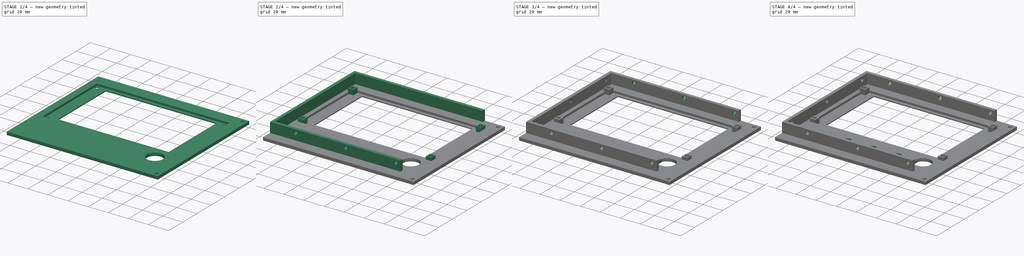
[diagram: build sequence overview — one tinted view per stage of 4, left to right]
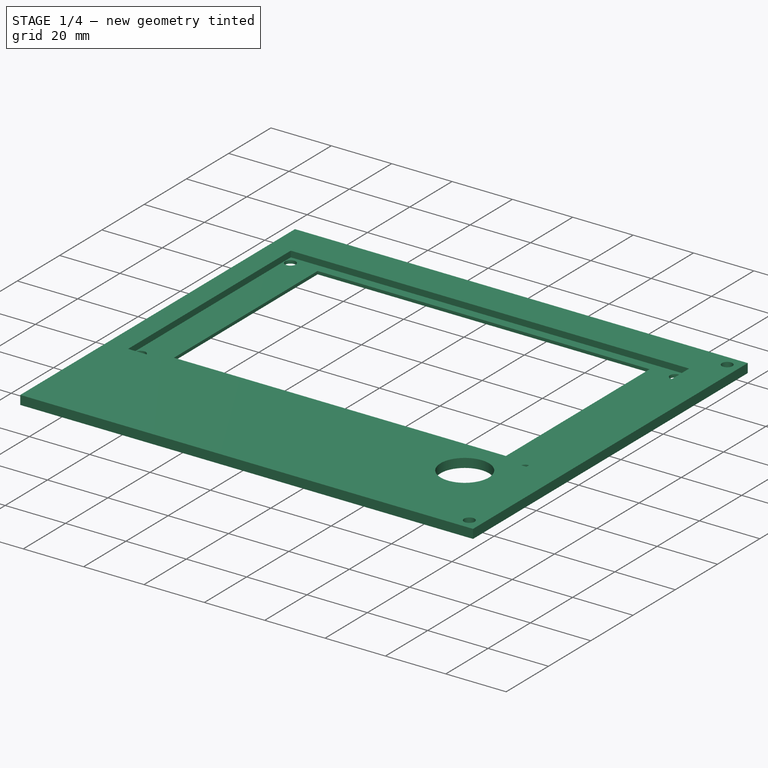
[diagram: stage 1 of 4 — iso view after this stage's code; geometry added in this stage tinted green]
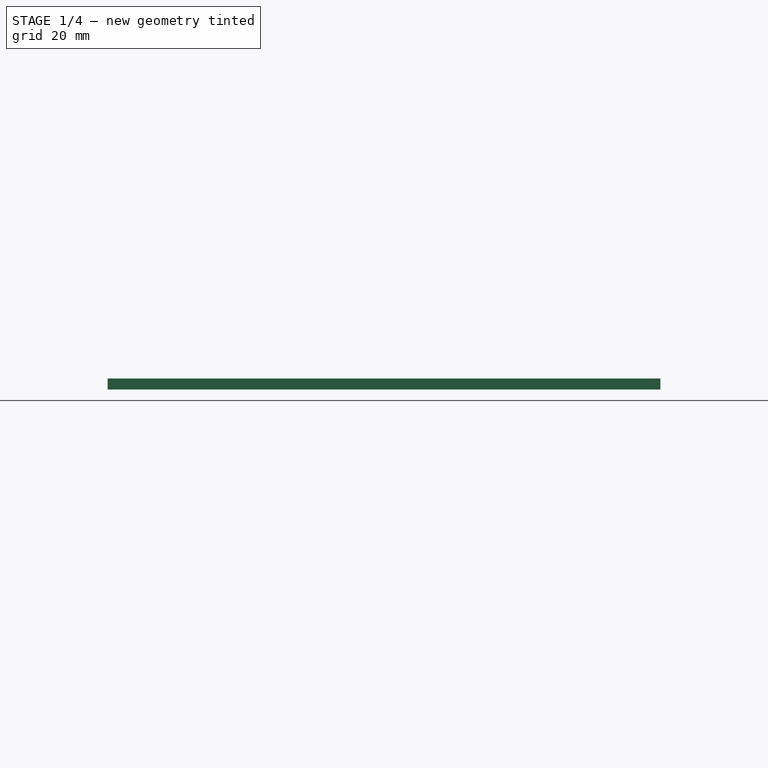
[diagram: stage 1 of 4 — front view after this stage's code; geometry added in this stage tinted green]
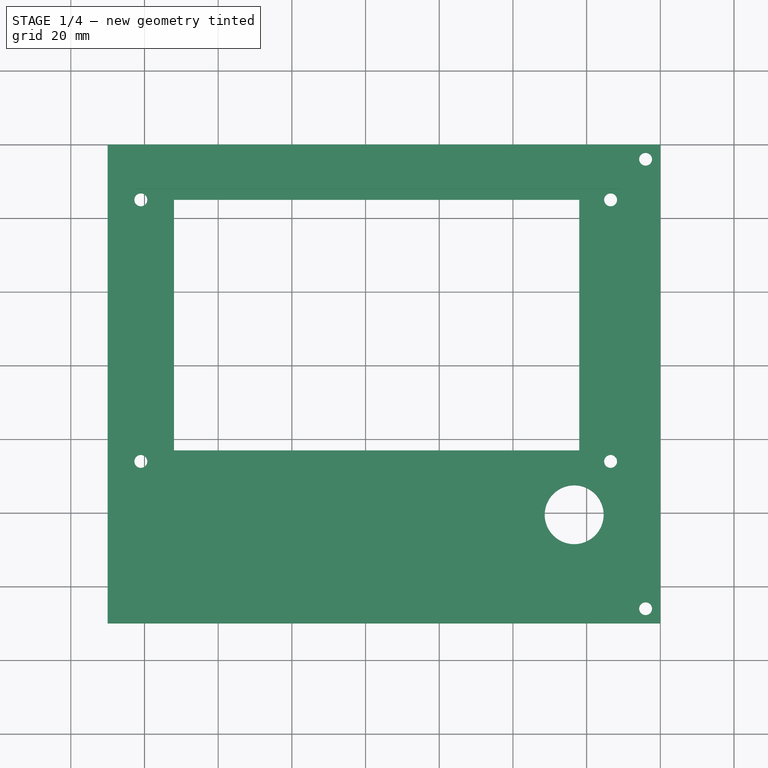
[diagram: stage 1 of 4 — top view after this stage's code; geometry added in this stage tinted green]
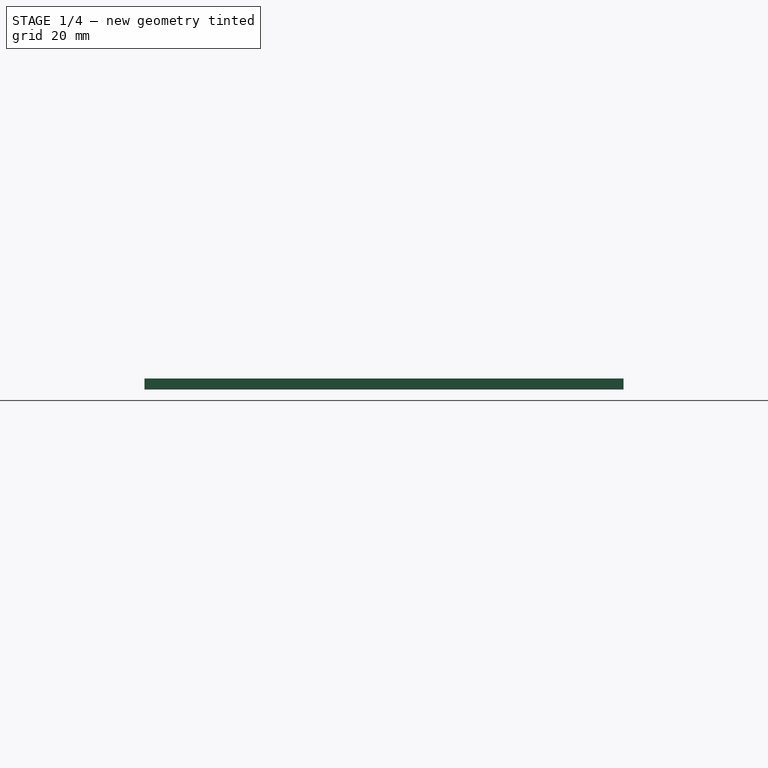
[diagram: stage 1 of 4 — right view after this stage's code; geometry added in this stage tinted green]
FCSTD DOCUMENT  (FreeCAD 0.21R33668 +26 (Git))
Label: Front_left_panel_KF5N v01
License: All rights reserved
LicenseURL: http://en.wikipedia.org/wiki/All_rights_reserved
objects: Sketcher::SketchObject×10, PartDesign::Pad×5, PartDesign::Pocket×5, PartDesign::Plane×2, PartDesign::Body×1
note: 33 computed .brp shape members not serialized (recipe doc carries the construction recipe); baked Part::Feature solids carry a one-line shape summary decoded from their .brp

FEATURE [Sketcher::SketchObject] Sketch  label="Main Front"
  FullyConstrained = false
  MapMode = 5
  Support = -> [XY_Plane]
  sketch-geometry (18):
    g0: LineSegment StartX=-150 StartY=60 StartZ=0 EndX=0 EndY=60 EndZ=0
    g1: LineSegment StartX=0 StartY=60 StartZ=0 EndX=0 EndY=-70 EndZ=0
    g2: LineSegment StartX=0 StartY=-70 StartZ=0 EndX=-150 EndY=-70 EndZ=0
    g3: LineSegment StartX=-150 StartY=-70 StartZ=0 EndX=-150 EndY=60 EndZ=0
    g4: LineSegment StartX=-132 StartY=45 StartZ=0 EndX=-22 EndY=45 EndZ=0
    g5: LineSegment StartX=-22 StartY=45 StartZ=0 EndX=-22 EndY=-23 EndZ=0
    g6: LineSegment StartX=-22 StartY=-23 StartZ=0 EndX=-132 EndY=-23 EndZ=0
    g7: LineSegment StartX=-132 StartY=-23 StartZ=0 EndX=-132 EndY=45 EndZ=0
    g8: LineSegment StartX=-101.72 StartY=-40.5 StartZ=0 EndX=-76.7201 EndY=-40.5 EndZ=0
    g9: LineSegment StartX=-76.9795 StartY=-40.5 StartZ=0 EndX=-51.9795 EndY=-40.5 EndZ=0
    g10: Circle CenterX=-23.3865 CenterY=-40.5 CenterZ=0 NormalX=0 NormalY=0 NormalZ=1 AngleXU=0 Radius=8
    g11: LineSegment StartX=-48.3865 StartY=-40.5 StartZ=0 EndX=-23.3865 EndY=-40.5 EndZ=0
    g12: Circle CenterX=-141 CenterY=45 CenterZ=0 NormalX=0 NormalY=0 NormalZ=1 AngleXU=0 Radius=1.75
    g13: Circle CenterX=-141 CenterY=-26 CenterZ=0 NormalX=0 NormalY=0 NormalZ=1 AngleXU=0 Radius=1.75
    g14: Circle CenterX=-13.5 CenterY=45 CenterZ=0 NormalX=0 NormalY=0 NormalZ=1 AngleXU=0 Radius=1.75
    g15: Circle CenterX=-13.5 CenterY=-26 CenterZ=0 NormalX=0 NormalY=0 NormalZ=1 AngleXU=0 Radius=1.75
    g16: Circle CenterX=-4 CenterY=56 CenterZ=0 NormalX=0 NormalY=0 NormalZ=1 AngleXU=0 Radius=1.75
    g17: Circle CenterX=-4 CenterY=-66 CenterZ=0 NormalX=0 NormalY=0 NormalZ=1 AngleXU=0 Radius=1.75
  constraints (50):
    c: Coincident(g0,g1)
    c: Coincident(g1,g2)
    c: Coincident(g2,g3)
    c: Coincident(g3,g0)
    c: Horizontal(g2)
    c: Vertical(g1)
    c: DistanceY(g3,g3) = 130
    c: Coincident(g4,g5)
    c: Coincident(g5,g6)
    c: Coincident(g6,g7)
    c: Coincident(g7,g4)
    c: Horizontal(g4)
    c: Horizontal(g6)
    c: Vertical(g5)
    c: Vertical(g7)
    c: DistanceX(g4,g4) = 110
    c: DistanceY(g7,g7) = 68
    c: DistanceX(g0,g4) = 18
    c: DistanceY(g4,g0) = 15
    c: Distance(g8) = 25
    c: Angle(g8) = 0
    c: Equal(g8,g9)
    c: Parallel(g9,g8)
    c: Coincident(g10,g11)
    c: Equal(g8,g11)
    c: Parallel(g11,g8)
    c: DistanceX(g12,g4) = 9
    c: Vertical(g12,g13)
    c: DistanceX(g4,g14) = 8.5
    c: Horizontal(g12,g14)
    c: Vertical(g15,g14)
    c: Horizontal(g15,g13)
    c: DistanceY(g16,g0) = 4
    c: DistanceY(g2,g17) = 4
    c: DistanceX(g0,g0) = 150
    c: DistanceX(g-1,g1) = 0
    c: DistanceX(g2,g2) = 150
    c: Perpendicular(g0,g1)
    c: DistanceY(g-1,g0) = 60
    c: DistanceY(g12,g4) = 0
    c: DistanceY(g13,g6) = 3
    c: DistanceX(g16,g0) = 4
    c: DistanceX(g17,g1) = 4
    c: Diameter(g17) = 3.5
    c: Diameter(g16) = 3.5
    c: Diameter(g12) = 3.5
    c: Equal(g12,g14)
    c: Equal(g14,g15)
    c: Equal(g15,g13)
    c: Diameter(g10) = 16
FEATURE [Sketcher::SketchObject] Sketch002  label="Screen pocket"
  AttachmentOffset = pos=(0,0,3.5) rot=(0,0,1;0rad)
  FullyConstrained = true
  MapMode = 5
  Placement = pos=(0,0,3.5) rot=(0,0,1;0rad)
  Support = -> [XY_Plane]
  sketch-geometry (4):
    g0: LineSegment StartX=-143 StartY=48 StartZ=0 EndX=-11 EndY=48 EndZ=0
    g1: LineSegment StartX=-11 StartY=48 StartZ=0 EndX=-11 EndY=-29 EndZ=0
    g2: LineSegment StartX=-11 StartY=-29 StartZ=0 EndX=-143 EndY=-29 EndZ=0
    g3: LineSegment StartX=-143 StartY=-29 StartZ=0 EndX=-143 EndY=48 EndZ=0
  constraints (12):
    c: Coincident(g0,g1)
    c: Coincident(g1,g2)
    c: Coincident(g2,g3)
    c: Coincident(g3,g0)
    c: Horizontal(g0)
    c: Horizontal(g2)
    c: Vertical(g1)
    c: Vertical(g3)
    c: DistanceX(g2,g2) = 132
    c: DistanceY(g3,g3) = 77
    c: DistanceX(g1,g-1) = 11
    c: DistanceY(g1,g-1) = 29
FEATURE [PartDesign::Pad] Pad
  Direction = (0,0,1)
  Length = 3
  Length2 = 100
  Profile = -> Sketch
  ReferenceAxis = -> Sketch [N_Axis]
  Type = 0
FEATURE [PartDesign::Pocket] Pocket001  label="Screen Pocket"
  BaseFeature = -> Pad
  Direction = (0,0,-1)
  Length = 2.5
  Length2 = 100
  Profile = -> Sketch002
  Type = 0
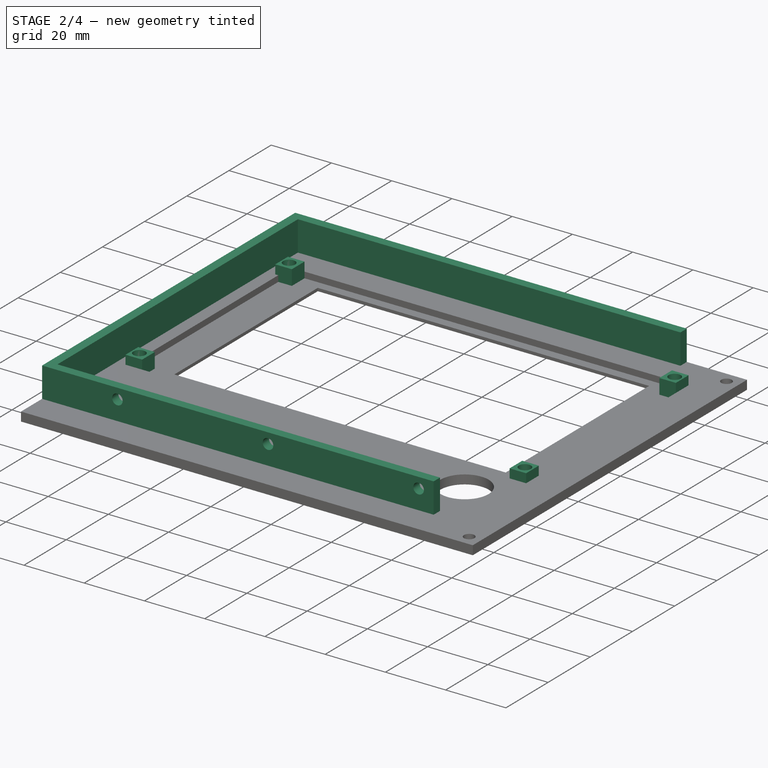
[diagram: stage 2 of 4 — iso view after this stage's code; geometry added in this stage tinted green]
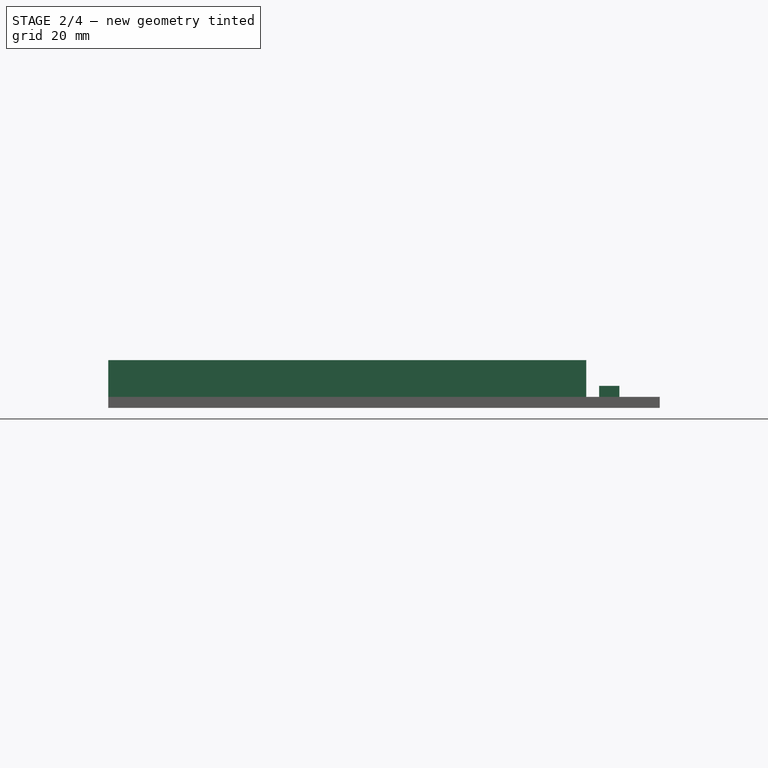
[diagram: stage 2 of 4 — front view after this stage's code; geometry added in this stage tinted green]
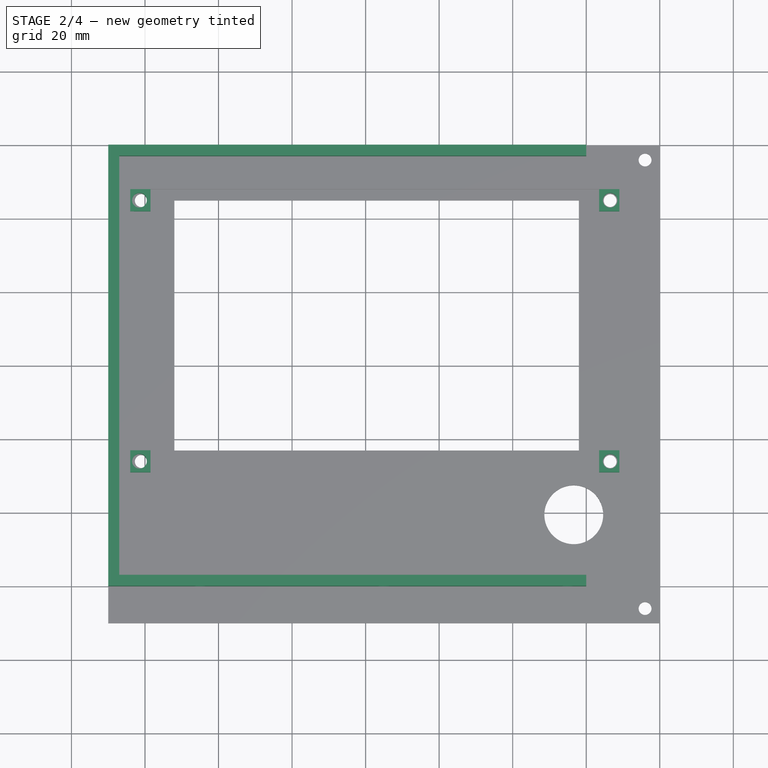
[diagram: stage 2 of 4 — top view after this stage's code; geometry added in this stage tinted green]
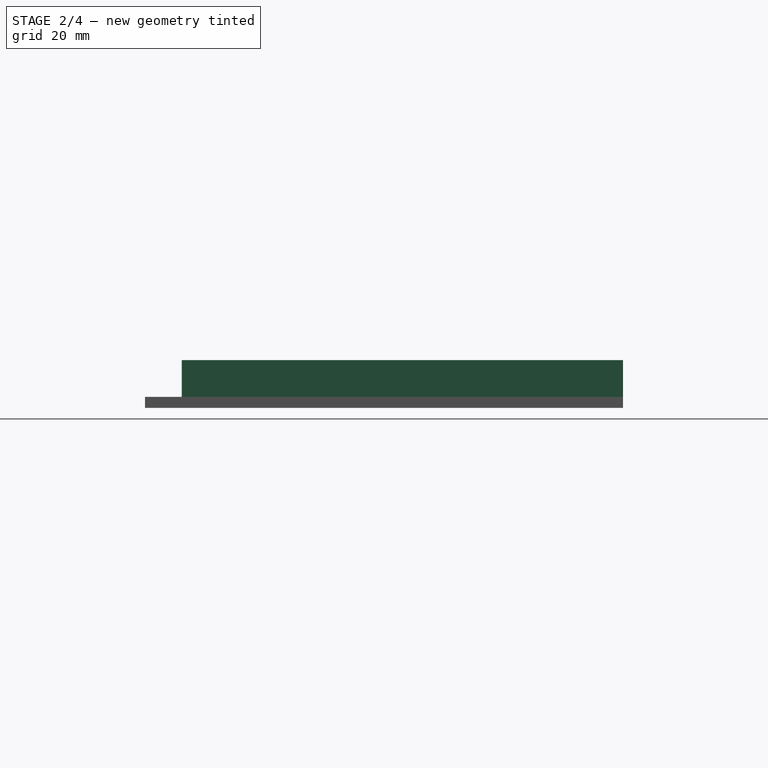
[diagram: stage 2 of 4 — right view after this stage's code; geometry added in this stage tinted green]
FEATURE [Sketcher::SketchObject] Sketch007
  FullyConstrained = true
  MapMode = 5
  Support = -> [XY_Plane]
  sketch-geometry (20):
    g0: Circle CenterX=-141.5 CenterY=45 CenterZ=0 NormalX=0 NormalY=0 NormalZ=1 AngleXU=0 Radius=2
    g1: Circle CenterX=-13.5 CenterY=45 CenterZ=0 NormalX=0 NormalY=0 NormalZ=1 AngleXU=0 Radius=2
    g2: LineSegment StartX=-144 StartY=48 StartZ=0 EndX=-138.5 EndY=48 EndZ=0
    g3: LineSegment StartX=-138.5 StartY=48 StartZ=0 EndX=-138.5 EndY=42 EndZ=0
    g4: LineSegment StartX=-138.5 StartY=42 StartZ=0 EndX=-144 EndY=42 EndZ=0
    g5: LineSegment StartX=-144 StartY=42 StartZ=0 EndX=-144 EndY=48 EndZ=0
    g6: LineSegment StartX=-16.5 StartY=42 StartZ=0 EndX=-11 EndY=42 EndZ=0
    g7: LineSegment StartX=-11 StartY=42 StartZ=0 EndX=-11 EndY=48 EndZ=0
    g8: LineSegment StartX=-11 StartY=48 StartZ=0 EndX=-16.5 EndY=48 EndZ=0
    g9: LineSegment StartX=-16.5 StartY=48 StartZ=0 EndX=-16.5 EndY=42 EndZ=0
    g10: LineSegment StartX=-16.5 StartY=-23 StartZ=0 EndX=-11 EndY=-23 EndZ=0
    g11: LineSegment StartX=-11 StartY=-23 StartZ=0 EndX=-11 EndY=-29 EndZ=0
    g12: LineSegment StartX=-11 StartY=-29 StartZ=0 EndX=-16.5 EndY=-29 EndZ=0
    g13: LineSegment StartX=-16.5 StartY=-29 StartZ=0 EndX=-16.5 EndY=-23 EndZ=0
    g14: Circle CenterX=-13.5 CenterY=-26 CenterZ=0 NormalX=0 NormalY=0 NormalZ=1 AngleXU=0 Radius=2
    g15: LineSegment StartX=-138.5 StartY=-23 StartZ=0 EndX=-144 EndY=-23 EndZ=0
    g16: LineSegment StartX=-144 StartY=-23 StartZ=0 EndX=-144 EndY=-29 EndZ=0
    g17: LineSegment StartX=-144 StartY=-29 StartZ=0 EndX=-138.5 EndY=-29 EndZ=0
    g18: LineSegment StartX=-138.5 StartY=-29 StartZ=0 EndX=-138.5 EndY=-23 EndZ=0
    g19: Circle CenterX=-141.5 CenterY=-26 CenterZ=0 NormalX=0 NormalY=0 NormalZ=1 AngleXU=0 Radius=2
  constraints (60):
    c: Diameter(g0) = 4
    c: Diameter(g1) = 4
    c: Coincident(g2,g3)
    c: Coincident(g3,g4)
    c: Coincident(g4,g5)
    c: Coincident(g5,g2)
    c: Horizontal(g2)
    c: Horizontal(g4)
    c: Vertical(g3)
    c: Vertical(g5)
    c: DistanceY(g3,g3) = 6
    c: DistanceX(g4,g4) = 5.5
    c: DistanceY(g-1,g3) = 42
    c: DistanceX(g3,g-1) = 138.5
    c: DistanceX(g0,g3) = 3
    c: DistanceY(g3,g0) = 3
    c: Coincident(g6,g7)
    c: Coincident(g7,g8)
    c: Coincident(g8,g9)
    c: Coincident(g9,g6)
    c: Horizontal(g6)
    c: Horizontal(g8)
    c: Vertical(g7)
    c: Vertical(g9)
    c: DistanceX(g6,g6) = 5.5
    c: DistanceY(g9,g9) = 6
    c: DistanceY(g-1,g6) = 42
    c: DistanceX(g6,g-1) = 16.5
    c: DistanceX(g6,g1) = 3
    c: DistanceY(g6,g1) = 3
    c: Coincident(g10,g11)
    c: Coincident(g11,g12)
    c: Coincident(g12,g13)
    c: Coincident(g13,g10)
    c: Horizontal(g10)
    c: Horizontal(g12)
    c: Vertical(g11)
    c: Vertical(g13)
    c: DistanceX(g10,g10) = 5.5
    c: DistanceY(g13,g13) = 6
    c: DistanceX(g10,g-1) = 16.5
    c: DistanceY(g10,g-1) = 23
    c: Diameter(g14) = 4
    c: DistanceX(g10,g14) = 3
    c: DistanceY(g14,g10) = 3
    c: Coincident(g15,g16)
    c: Coincident(g16,g17)
    c: Coincident(g17,g18)
    c: Coincident(g18,g15)
    c: Horizontal(g15)
    c: Horizontal(g17)
    c: Vertical(g16)
    c: Vertical(g18)
    c: DistanceX(g15,g15) = 5.5
    c: DistanceY(g18,g18) = 6
    c: DistanceX(g15,g-1) = 138.5
    c: DistanceY(g15,g-1) = 23
    c: Diameter(g19) = 4
    c: DistanceY(g19,g15) = 3
    c: DistanceX(g19,g15) = 3
FEATURE [PartDesign::Pad] Pad002  label="Display mtg pads"
  BaseFeature = -> Pocket001
  Direction = (0,0,1)
  Length = 6
  Length2 = 100
  Profile = -> Sketch007
  Type = 0
FEATURE [Sketcher::SketchObject] Sketch010
  AttachmentOffset = pos=(0,0,60) rot=(0,0,1;0rad)
  FullyConstrained = true
  MapMode = 5
  Placement = pos=(0,-60,-1.33e-14) rot=(1,0,0;1.5708rad)
  Support = -> [XZ_Plane]
  sketch-geometry (3):
    g0: Circle CenterX=-125 CenterY=9.5 CenterZ=0 NormalX=0 NormalY=0 NormalZ=1 AngleXU=0 Radius=1.75
    g1: Circle CenterX=-25 CenterY=9.5 CenterZ=0 NormalX=0 NormalY=0 NormalZ=1 AngleXU=0 Radius=1.75
    g2: Circle CenterX=-75 CenterY=9.5 CenterZ=0 NormalX=0 NormalY=0 NormalZ=1 AngleXU=0 Radius=1.75
  constraints (9):
    c: DistanceX(g0,g-1) = 125
    c: DistanceX(g1,g-1) = 25
    c: DistanceY(g-1,g0) = 9.5
    c: Horizontal(g0,g1)
    c: Equal(g0,g1)
    c: Diameter(g0) = 3.5
    c: DistanceX(g2,g-1) = 75
    c: Horizontal(g2,g1)
    c: Equal(g0,g2)
FEATURE [Sketcher::SketchObject] Sketch011
  AttachmentOffset = pos=(0,0,-60) rot=(0,0,1;0rad)
  FullyConstrained = true
  MapMode = 5
  Placement = pos=(0,60,1.33e-14) rot=(1,0,0;1.5708rad)
  Support = -> [XZ_Plane]
  sketch-geometry (3):
    g0: Circle CenterX=-75 CenterY=9.5 CenterZ=0 NormalX=0 NormalY=0 NormalZ=1 AngleXU=0 Radius=1.75
    g1: Circle CenterX=-25 CenterY=9.5 CenterZ=0 NormalX=0 NormalY=0 NormalZ=1 AngleXU=0 Radius=1.75
    g2: Circle CenterX=-125 CenterY=9.5 CenterZ=0 NormalX=0 NormalY=0 NormalZ=1 AngleXU=0 Radius=1.75
  constraints (9):
    c: DistanceX(g0,g-1) = 75
    c: DistanceY(g-1,g0) = 9.5
    c: Diameter(g0) = 3.5
    c: Equal(g0,g2)
    c: Equal(g2,g1)
    c: DistanceY(g-1,g2) = 9.5
    c: DistanceY(g-1,g1) = 9.5
    c: DistanceX(g2,g-1) = 125
    c: DistanceX(g1,g-1) = 25
FEATURE [PartDesign::Plane] DatumPlane
  AttachmentOffset = pos=(0,0,3) rot=(0,0,1;0rad)
  Length = 60
  MapMode = 5
  Placement = pos=(0,0,3) rot=(0,0,1;0rad)
  ResizeMode = 0
  Support = -> [XY_Plane]
  Width = 60
FEATURE [Sketcher::SketchObject] Sketch003  label="Flange"
  FullyConstrained = true
  MapMode = 5
  Placement = pos=(0,0,3) rot=(0,0,1;0rad)
  Support = -> [DatumPlane]
  sketch-geometry (8):
    g0: LineSegment StartX=-20 StartY=60 StartZ=0 EndX=-150 EndY=60 EndZ=0
    g1: LineSegment StartX=-150 StartY=60 StartZ=0 EndX=-150 EndY=-60 EndZ=0
    g2: LineSegment StartX=-150 StartY=-60 StartZ=0 EndX=-20 EndY=-60 EndZ=0
    g3: LineSegment StartX=-20 StartY=-60 StartZ=0 EndX=-20 EndY=-57 EndZ=0
    g4: LineSegment StartX=-20 StartY=-57 StartZ=0 EndX=-147 EndY=-57 EndZ=0
    g5: LineSegment StartX=-147 StartY=-57 StartZ=0 EndX=-147 EndY=57 EndZ=0
    g6: LineSegment StartX=-147 StartY=57 StartZ=0 EndX=-20 EndY=57 EndZ=0
    g7: LineSegment StartX=-20 StartY=57 StartZ=0 EndX=-20 EndY=60 EndZ=0
  constraints (24):
    c: Horizontal(g0)
    c: Coincident(g0,g1)
    c: Vertical(g1)
    c: Coincident(g1,g2)
    c: Horizontal(g2)
    c: Coincident(g2,g3)
    c: Vertical(g3)
    c: Coincident(g3,g4)
    c: Horizontal(g4)
    c: Coincident(g4,g5)
    c: Vertical(g5)
    c: Coincident(g5,g6)
    c: Horizontal(g6)
    c: Coincident(g6,g7)
    c: Coincident(g7,g0)
    c: DistanceX(g0,g0) = 130
    c: DistanceX(g2,g2) = 130
    c: DistanceX(g4,g4) = 127
    c: DistanceX(g6,g6) = 127
    c: DistanceY(g1,g1) = 120
    c: DistanceY(g5,g5) = 114
    c: DistanceY(g3,g3) = 3
    c: DistanceY(g-1,g0) = 60
    c: DistanceX(g0,g-1) = 150
FEATURE [PartDesign::Pad] Pad003  label="Flange001"
  BaseFeature = -> Pad002
  Direction = (0,0,1)
  Length = 10
  Length2 = 100
  Profile = -> Sketch003
  ReferenceAxis = -> Sketch003 [N_Axis]
  Type = 0
FEATURE [PartDesign::Pocket] Pocket002  label="Base Mtg Holes"
  BaseFeature = -> Pad003
  Direction = (0,1,2e-16)
  Length = 6
  Length2 = 100
  Profile = -> Sketch010
  ReferenceAxis = -> Sketch010 [N_Axis]
  Type = 0
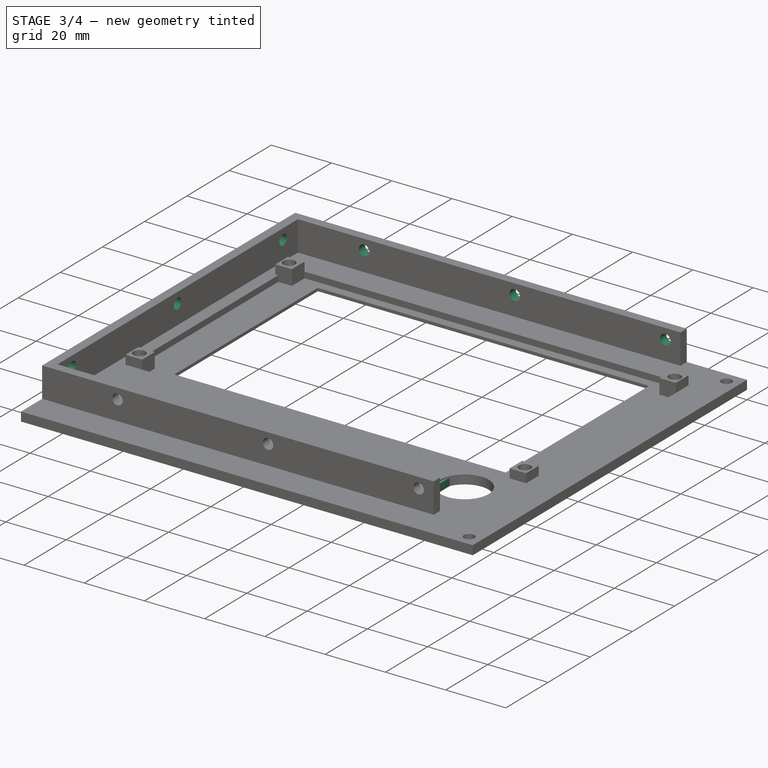
[diagram: stage 3 of 4 — iso view after this stage's code; geometry added in this stage tinted green]
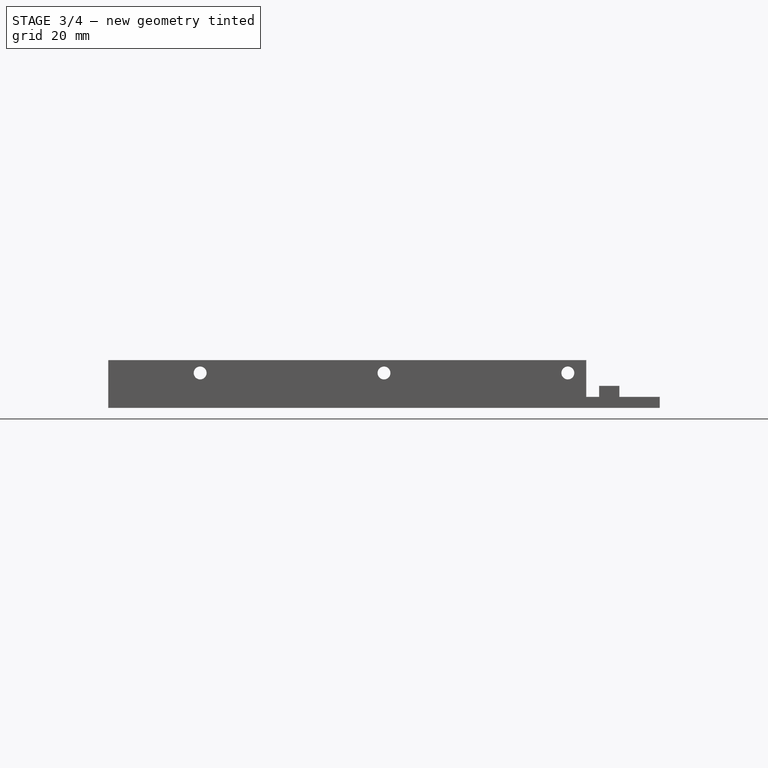
[diagram: stage 3 of 4 — front view after this stage's code; geometry added in this stage tinted green]
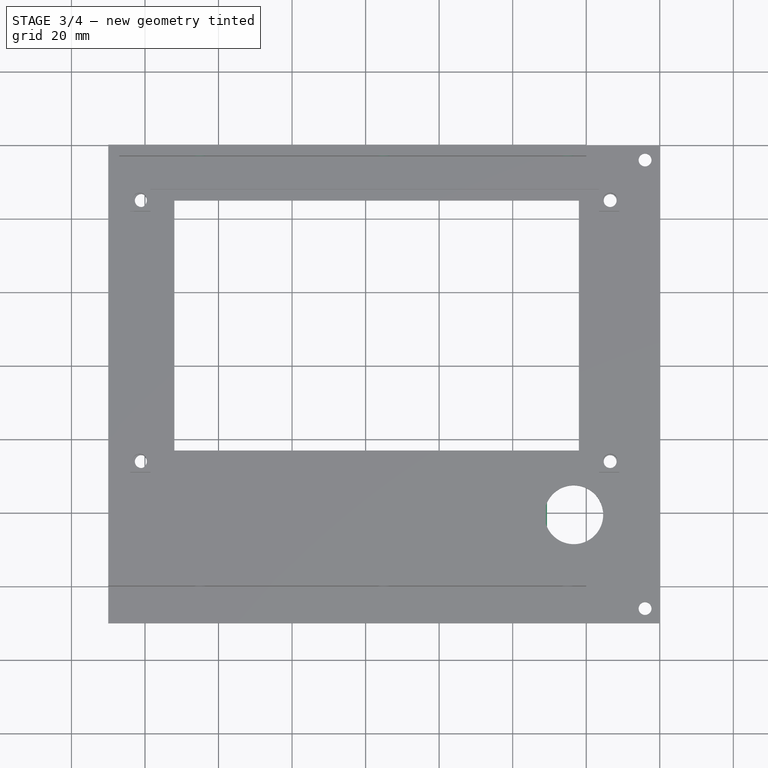
[diagram: stage 3 of 4 — top view after this stage's code; geometry added in this stage tinted green]
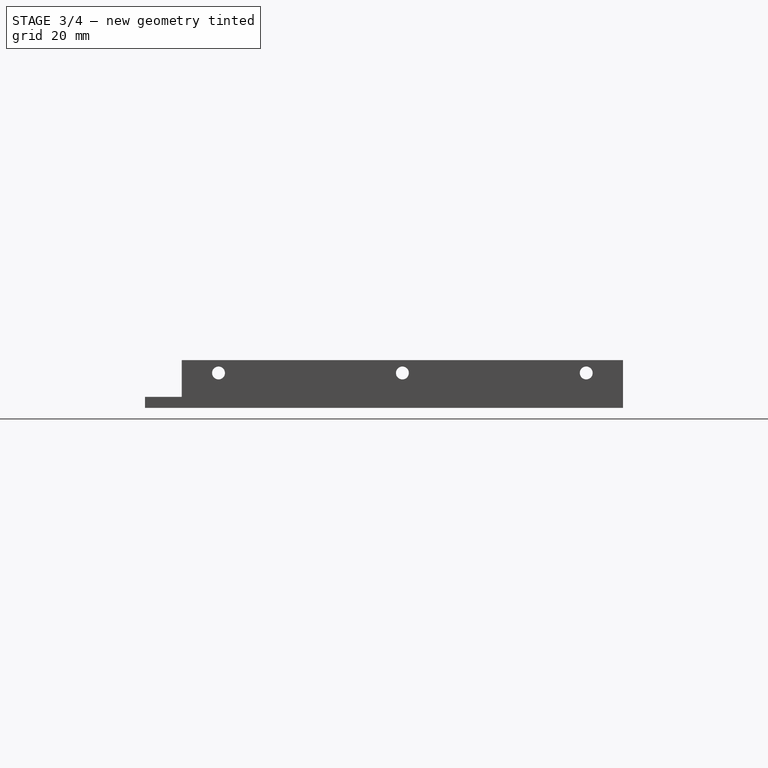
[diagram: stage 3 of 4 — right view after this stage's code; geometry added in this stage tinted green]
FEATURE [PartDesign::Pocket] Pocket003  label="2mm top hole"
  BaseFeature = -> Pocket002
  Direction = (0,1,2e-16)
  Length = 15
  Length2 = 100
  Midplane = true
  Profile = -> Sketch011
  ReferenceAxis = -> Sketch011 [N_Axis]
  Type = 0
FEATURE [PartDesign::Plane] DatumPlane001
  AttachmentOffset = pos=(0,0,-150) rot=(0,0,1;0rad)
  Length = 60
  MapMode = 5
  Placement = pos=(-150,3.33e-14,-3.33e-14) rot=(0.57735,0.57735,0.57735;2.0944rad)
  ResizeMode = 0
  Support = -> [YZ_Plane]
  Width = 60
FEATURE [Sketcher::SketchObject] Sketch012
  FullyConstrained = true
  MapMode = 5
  Placement = pos=(-150,3.33e-14,-3.33e-14) rot=(0.57735,0.57735,0.57735;2.0944rad)
  Support = -> [DatumPlane001]
  sketch-geometry (3):
    g0: Circle CenterX=0 CenterY=9.5 CenterZ=0 NormalX=0 NormalY=0 NormalZ=1 AngleXU=0 Radius=1.75
    g1: Circle CenterX=50 CenterY=9.5 CenterZ=0 NormalX=0 NormalY=0 NormalZ=1 AngleXU=0 Radius=1.75
    g2: Circle CenterX=-50 CenterY=9.5 CenterZ=0 NormalX=0 NormalY=0 NormalZ=1 AngleXU=0 Radius=1.75
  constraints (9):
    c: DistanceX(g-1,g1) = 50
    c: DistanceX(g2,g-1) = 50
    c: DistanceY(g-1,g1) = 9.5
    c: Equal(g1,g0)
    c: Equal(g1,g2)
    c: Diameter(g1) = 3.5
    c: DistanceX(g-1,g0) = 0
    c: DistanceY(g-1,g0) = 9.5
    c: DistanceY(g-1,g2) = 9.5
FEATURE [PartDesign::Pocket] Pocket004  label="Center Mtg holes"
  BaseFeature = -> Pocket003
  Direction = (-1,1e-16,-1e-16)
  Length = 15
  Length2 = 100
  Midplane = true
  Profile = -> Sketch012
  Type = 0
FEATURE [Sketcher::SketchObject] Sketch014  label="MicrophoneFlatLeft"
  ExternalGeometry = -> [Pocket004]
  FullyConstrained = true
  MapMode = 5
  Support = -> [XY_Plane]
  expr: .Constraints.FlatFromCenter = 14.6 / 2
  expr: .Constraints.FlatWidth = (16 - 14.6) / 2
  sketch-geometry (4):
    g0: LineSegment StartX=-30.6865 StartY=-43.7726 StartZ=0 EndX=-31.3865 EndY=-43.7726 EndZ=0
    g1: LineSegment StartX=-31.3865 StartY=-43.7726 StartZ=0 EndX=-31.3865 EndY=-37.2274 EndZ=0
    g2: LineSegment StartX=-31.3865 StartY=-37.2274 StartZ=0 EndX=-30.6865 EndY=-37.2274 EndZ=0
    g3: LineSegment StartX=-30.6865 StartY=-37.2274 StartZ=0 EndX=-30.6865 EndY=-43.7726 EndZ=0
  constraints (12):
    c: Coincident(g0,g1)
    c: Coincident(g1,g2)
    c: Coincident(g2,g3)
    c: Coincident(g3,g0)
    c: Horizontal(g0)
    c: Horizontal(g2)
    c: Vertical(g1)
    c: Vertical(g3)
    c: PointOnObject(g0,g-3)
    c: PointOnObject(g2,g-3)
    c: Distance(g-3,g3) = 7.3  'FlatFromCenter'
    c: DistanceX(g0,g0) = 0.7  'FlatWidth'
FEATURE [PartDesign::Pad] Pad004  label="MicrophoneFlatPadLeft"
  BaseFeature = -> Pocket004
  Direction = (0,0,1)
  Length = 2.5
  Length2 = 10
  Profile = -> Sketch014
  ReferenceAxis = -> Sketch014 [N_Axis]
  Type = 0
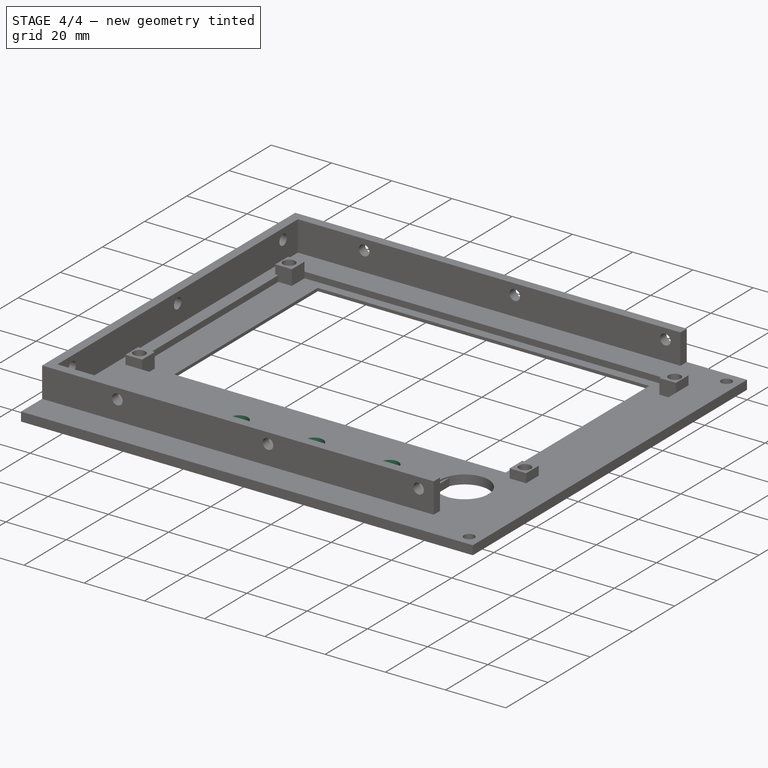
[diagram: stage 4 of 4 — iso view after this stage's code; geometry added in this stage tinted green]
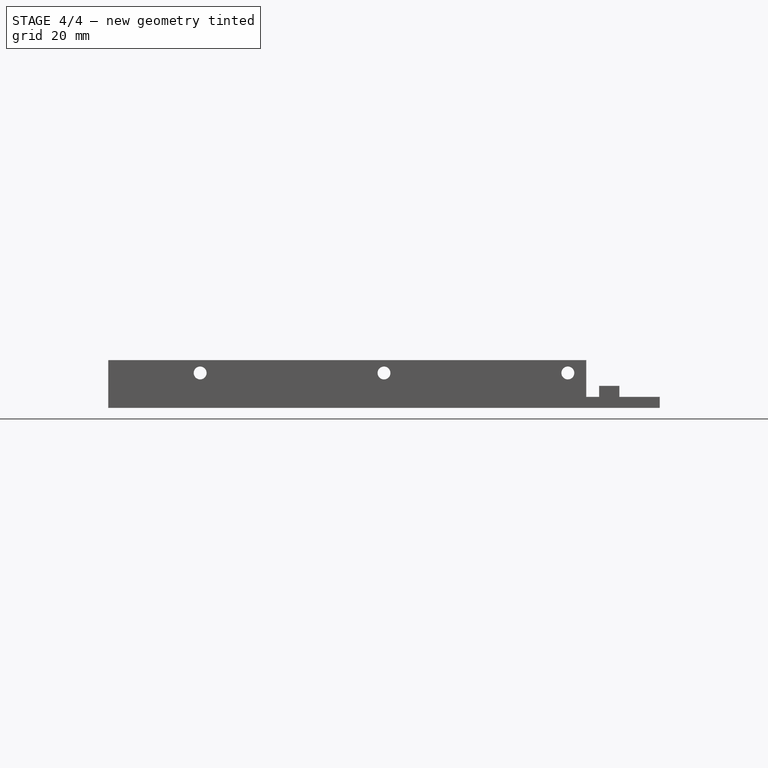
[diagram: stage 4 of 4 — front view after this stage's code; geometry added in this stage tinted green]
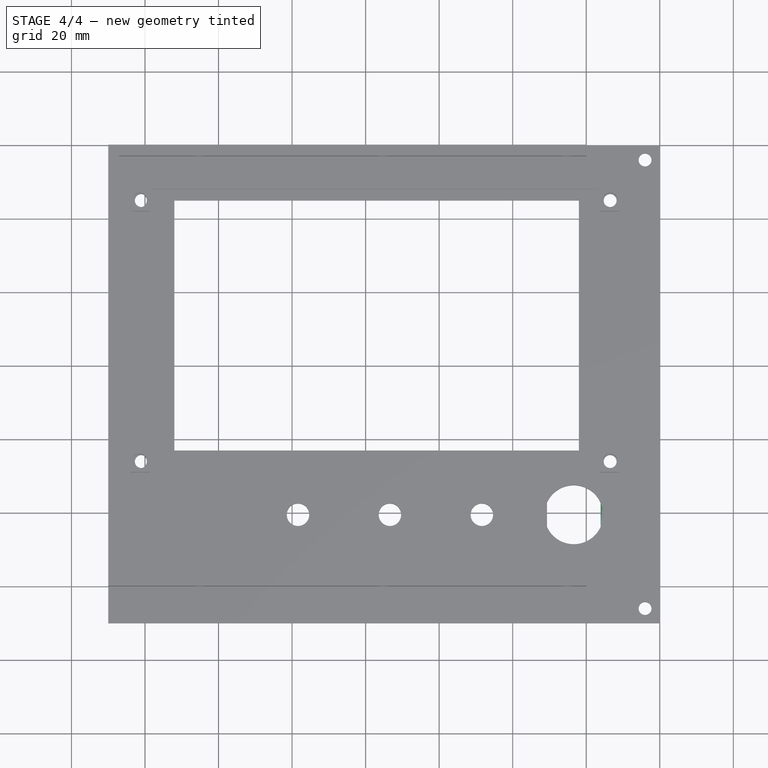
[diagram: stage 4 of 4 — top view after this stage's code; geometry added in this stage tinted green]
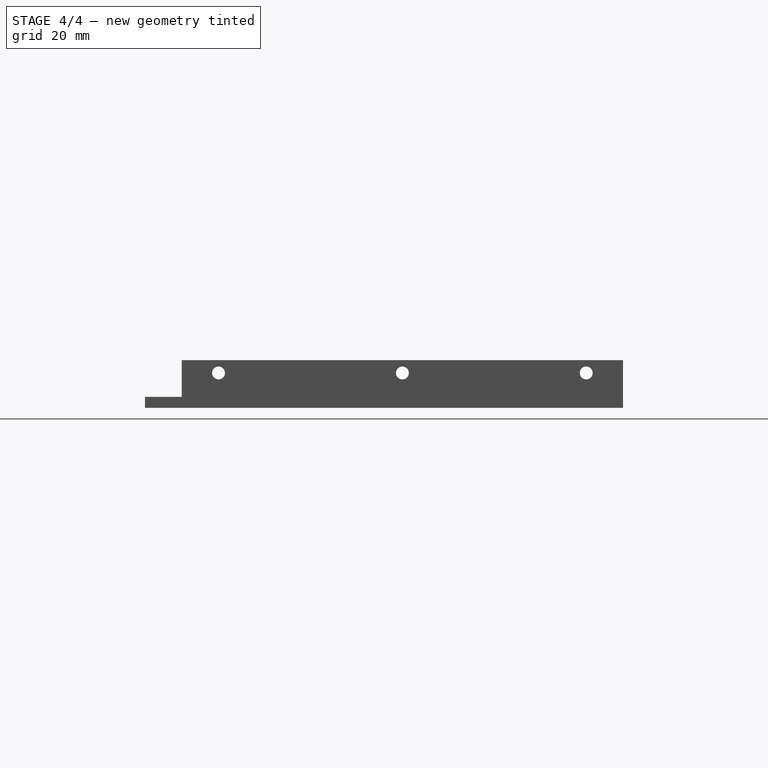
[diagram: stage 4 of 4 — right view after this stage's code; geometry added in this stage tinted green]
FEATURE [Sketcher::SketchObject] Sketch015  label="Connectors"
  ExternalGeometry = -> [Pad004]
  FullyConstrained = true
  MapMode = 5
  Placement = pos=(0,0,0) rot=(1,0,0;3.14159rad)
  Support = -> [Pad004]
  sketch-geometry (3):
    g0: Circle CenterX=-48.3865 CenterY=40.5 CenterZ=0 NormalX=0 NormalY=0 NormalZ=1 AngleXU=0 Radius=3.05
    g1: Circle CenterX=-73.3865 CenterY=40.5 CenterZ=0 NormalX=0 NormalY=0 NormalZ=1 AngleXU=0 Radius=3.05
    g2: Circle CenterX=-98.3865 CenterY=40.5 CenterZ=0 NormalX=0 NormalY=0 NormalZ=1 AngleXU=0 Radius=3.05
  constraints (9):
    c: Distance(g0,g-5) = 29.5
    c: Distance(g1,g-5) = 29.5
    c: Distance(g2,g-5) = 29.5
    c: Distance(g0,g1) = 25
    c: Distance(g1,g2) = 25
    c: Equal(g2,g1)
    c: Equal(g1,g0)
    c: Diameter(g0) = 6.1
    c: Distance(g-8,g0) = 25
FEATURE [PartDesign::Pocket] Pocket  label="ConnectorsPocket"
  BaseFeature = -> Pad004
  Direction = (0,0,1)
  Length = 2.5
  Length2 = 5
  Profile = -> Sketch015
  ReferenceAxis = -> Sketch015 [N_Axis]
  Type = 1
FEATURE [Sketcher::SketchObject] Sketch016  label="MicrophoneFlatRight"
  ExternalGeometry = -> [Pocket]
  FullyConstrained = true
  MapMode = 5
  Placement = pos=(0,0,0) rot=(1,0,0;3.14159rad)
  Support = -> [Pocket]
  expr: Constraints[10] = <<MicrophoneFlatLeft>>.Constraints.FlatFromCenter
  expr: Constraints[11] = <<MicrophoneFlatLeft>>.Constraints.FlatWidth
  sketch-geometry (4):
    g0: LineSegment StartX=-16.0865 StartY=43.7726 StartZ=0 EndX=-15.3865 EndY=43.7726 EndZ=0
    g1: LineSegment StartX=-15.3865 StartY=43.7726 StartZ=0 EndX=-15.3865 EndY=37.2274 EndZ=0
    g2: LineSegment StartX=-15.3865 StartY=37.2274 StartZ=0 EndX=-16.0865 EndY=37.2274 EndZ=0
    g3: LineSegment StartX=-16.0865 StartY=37.2274 StartZ=0 EndX=-16.0865 EndY=43.7726 EndZ=0
  constraints (12):
    c: Coincident(g0,g1)
    c: Coincident(g1,g2)
    c: Coincident(g2,g3)
    c: Coincident(g3,g0)
    c: Horizontal(g0)
    c: Horizontal(g2)
    c: Vertical(g1)
    c: Vertical(g3)
    c: PointOnObject(g0,g-3)
    c: PointOnObject(g2,g-4)
    c: Distance(g-4,g3) = 7.3
    c: DistanceX(g0,g0) = 0.7
FEATURE [PartDesign::Pad] Pad005  label="MicrophoneFlatPadRight"
  BaseFeature = -> Pocket
  Direction = (0,0,-1)
  Length = 0
  Length2 = 2.5
  Profile = -> Sketch016
  ReferenceAxis = -> Sketch016 [N_Axis]
  Type = 4
FEATURE [PartDesign::Body] Body
  Group = -> [Sketch,Pad,Sketch002,Sketch007,Pocket001,Sketch003,Pad002,Pad003,Sketch010,Pocket002,Sketch011,Pocket003,Sketch012,Pocket004,DatumPlane,DatumPlane001,Sketch014,Pad004,Sketch015,Pocket,Sketch016,Pad005]
  Origin = -> Origin
  Tip = -> Pad005
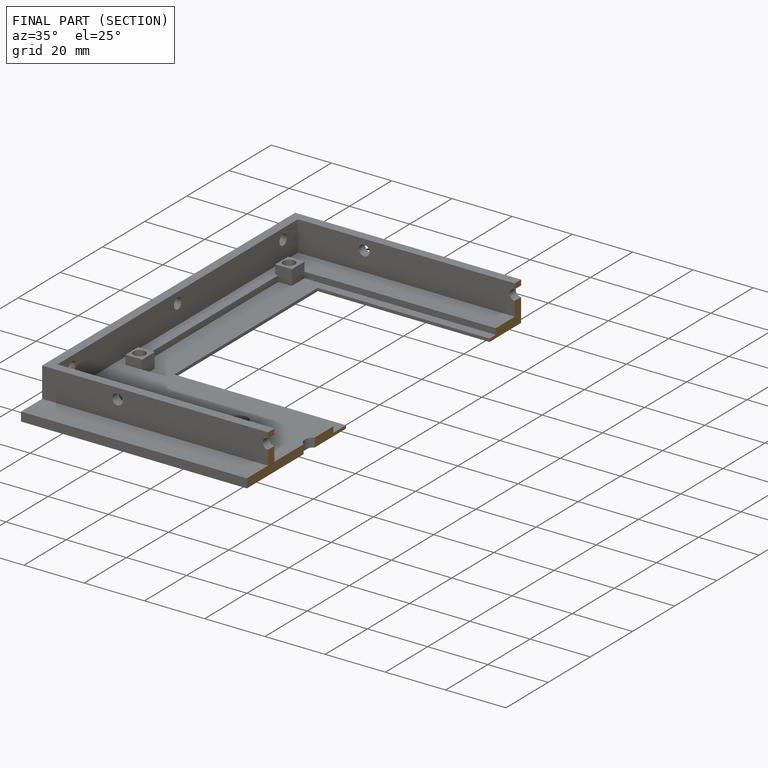
[diagram: finished part — half-section view (interior)]
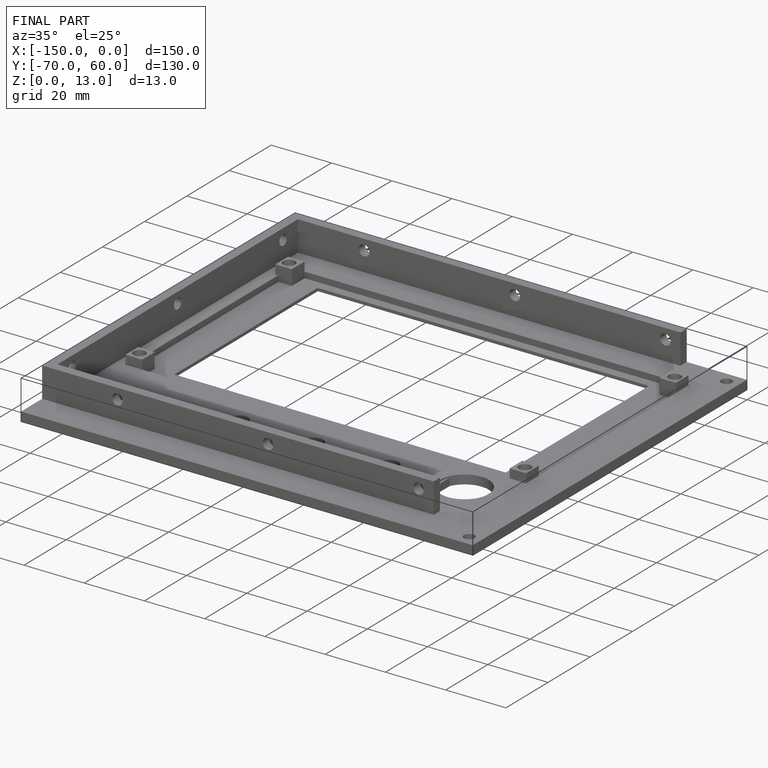
[diagram: finished part — iso view with bounding-box wireframe]
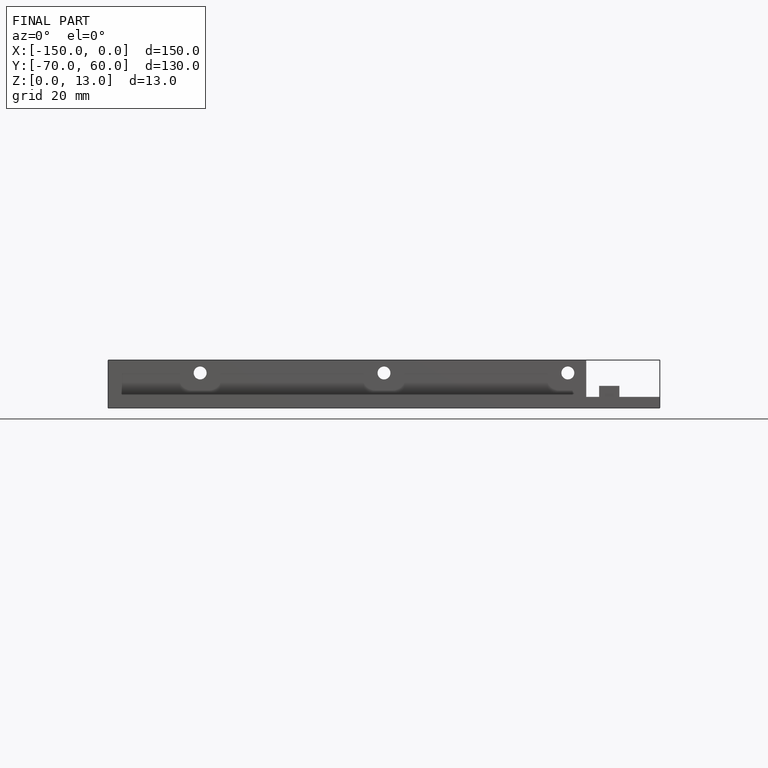
[diagram: finished part — front view with bounding-box wireframe]
